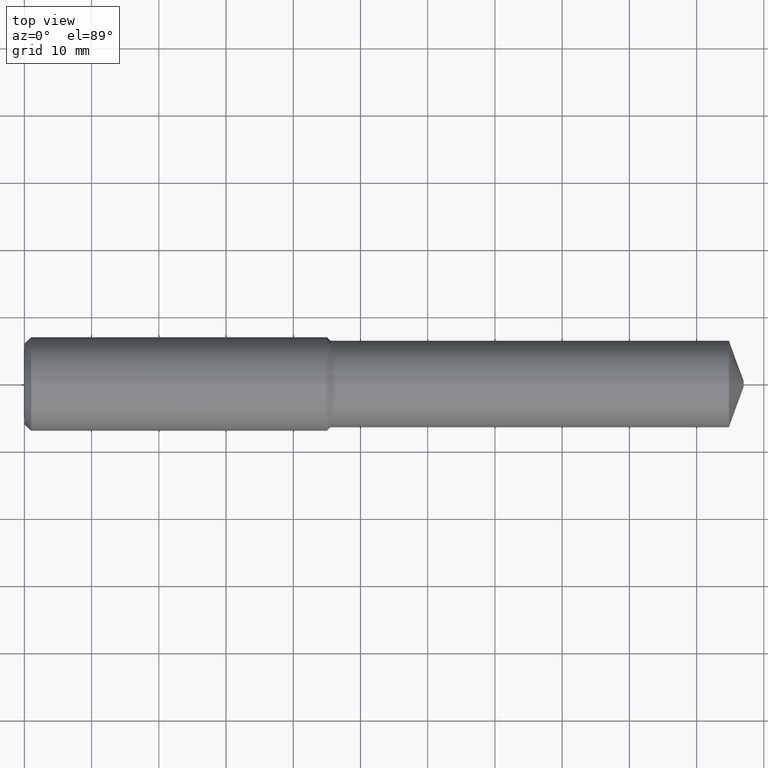
[diagram: clean part render]
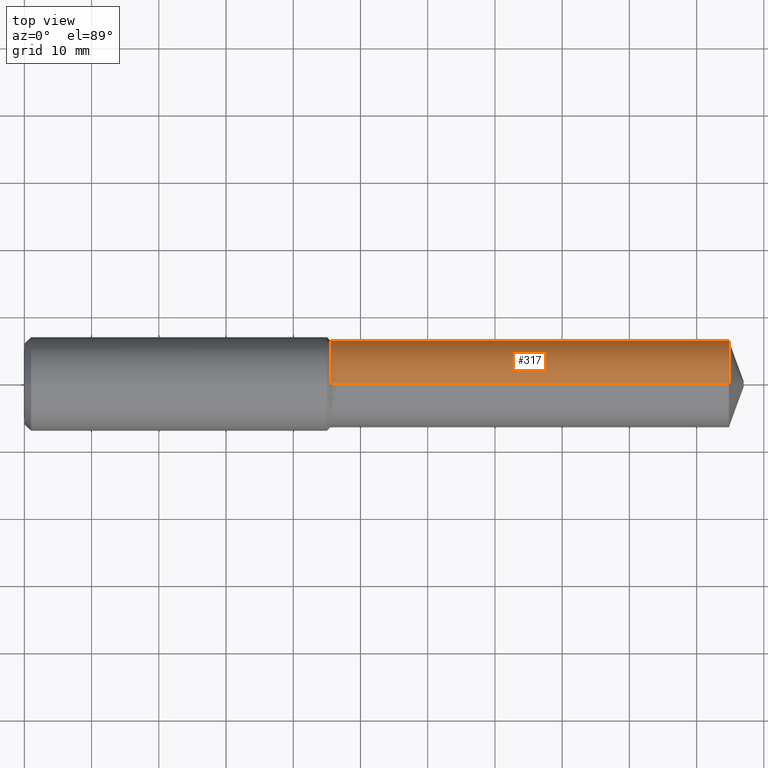
[diagram: same view with one face highlighted and labeled with its STEP entity id]
A machine part, top view. The second image highlights one B-rep face of the part: STEP entity #317.
In plain terms, the highlighted cylindrical surface (partial cylindrical patch) has radius 6.4643 mm, axis along (1, -0, -0).
Its self-contained STEP definition (entity closure, byte-faithful):
#1 = CARTESIAN_POINT ( 'NONE',  ( 4.126337479675760811, 0.000000000000000000, 0.000000000000000000 ) ) ;
#51 = ORIENTED_EDGE ( 'NONE', *, *, #83, .F. ) ;
#82 = CIRCLE ( 'NONE', #359, 0.2545000000000002260 ) ;
#83 = EDGE_CURVE ( 'NONE', #134, #99, #332, .T. ) ;
#84 = DIRECTION ( 'NONE',  ( 1.000000000000000000, -0.000000000000000000, -0.000000000000000000 ) ) ;
#88 = AXIS2_PLACEMENT_3D ( 'NONE', #1, #115, #233 ) ;
#90 = CARTESIAN_POINT ( 'NONE',  ( 4.126337479675760811, 0.000000000000000000, 0.2545000000000006146 ) ) ;
#99 = VERTEX_POINT ( 'NONE', #90 ) ;
#115 = DIRECTION ( 'NONE',  ( 1.000000000000000000, -0.000000000000000000, -0.000000000000000000 ) ) ;
#122 = DIRECTION ( 'NONE',  ( 1.000000000000000000, -0.000000000000000000, -0.000000000000000000 ) ) ;
#129 = VECTOR ( 'NONE', #84, 39.37007874015748143 ) ;
#132 = EDGE_CURVE ( 'NONE', #228, #99, #357, .T. ) ;
#134 = VERTEX_POINT ( 'NONE', #273 ) ;
#166 = EDGE_LOOP ( 'NONE', ( #287, #337, #51, #318 ) ) ;
#190 = CARTESIAN_POINT ( 'NONE',  ( -0.03808593750000075634, 0.000000000000000000, -0.2545000000000003926 ) ) ;
#199 = VECTOR ( 'NONE', #312, 39.37007874015748143 ) ;
#215 = CARTESIAN_POINT ( 'NONE',  ( -0.03808593750000075634, 0.000000000000000000, 0.000000000000000000 ) ) ;
#216 = DIRECTION ( 'NONE',  ( 1.000000000000000000, -0.000000000000000000, -0.000000000000000000 ) ) ;
#221 = VERTEX_POINT ( 'NONE', #365 ) ;
#227 = LINE ( 'NONE', #190, #199 ) ;
#228 = VERTEX_POINT ( 'NONE', #329 ) ;
#232 = EDGE_CURVE ( 'NONE', #221, #228, #82, .T. ) ;
#233 = DIRECTION ( 'NONE',  ( 0.000000000000000000, 0.000000000000000000, -1.000000000000000000 ) ) ;
#240 = DIRECTION ( 'NONE',  ( 0.000000000000000000, 0.000000000000000000, -1.000000000000000000 ) ) ;
#244 = AXIS2_PLACEMENT_3D ( 'NONE', #215, #122, #240 ) ;
#247 = FACE_OUTER_BOUND ( 'NONE', #166, .T. ) ;
#273 = CARTESIAN_POINT ( 'NONE',  ( 4.126337479675760811, 3.116726103830021186E-17, -0.2545000000000006146 ) ) ;
#287 = ORIENTED_EDGE ( 'NONE', *, *, #232, .T. ) ;
#301 = CYLINDRICAL_SURFACE ( 'NONE', #244, 0.2545000000000003926 ) ;
#312 = DIRECTION ( 'NONE',  ( 1.000000000000000000, -0.000000000000000000, -0.000000000000000000 ) ) ;
#317 = ADVANCED_FACE ( 'NONE', ( #247 ), #301, .T. ) ;
#318 = ORIENTED_EDGE ( 'NONE', *, *, #361, .F. ) ;
#325 = CARTESIAN_POINT ( 'NONE',  ( -0.03808593750000075634, 3.116726103830018721E-17, 0.2545000000000003926 ) ) ;
#328 = CARTESIAN_POINT ( 'NONE',  ( 1.792744094488189166, 0.000000000000000000, 0.000000000000000000 ) ) ;
#329 = CARTESIAN_POINT ( 'NONE',  ( 1.792744094488189166, 3.116726103830018104E-17, 0.2545000000000002260 ) ) ;
#332 = CIRCLE ( 'NONE', #88, 0.2545000000000005036 ) ;
#333 = DIRECTION ( 'NONE',  ( 0.000000000000000000, 0.000000000000000000, -1.000000000000000000 ) ) ;
#337 = ORIENTED_EDGE ( 'NONE', *, *, #132, .T. ) ;
#357 = LINE ( 'NONE', #325, #129 ) ;
#359 = AXIS2_PLACEMENT_3D ( 'NONE', #328, #216, #333 ) ;
#361 = EDGE_CURVE ( 'NONE', #221, #134, #227, .T. ) ;
#365 = CARTESIAN_POINT ( 'NONE',  ( 1.792744094488189166, 0.000000000000000000, -0.2545000000000002260 ) ) ;